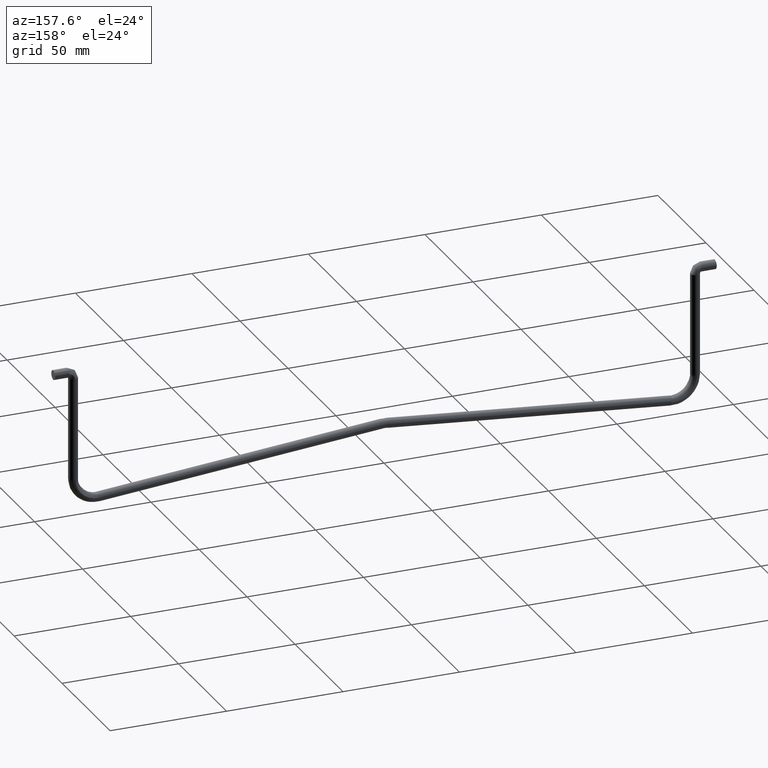
[diagram: clean part render]
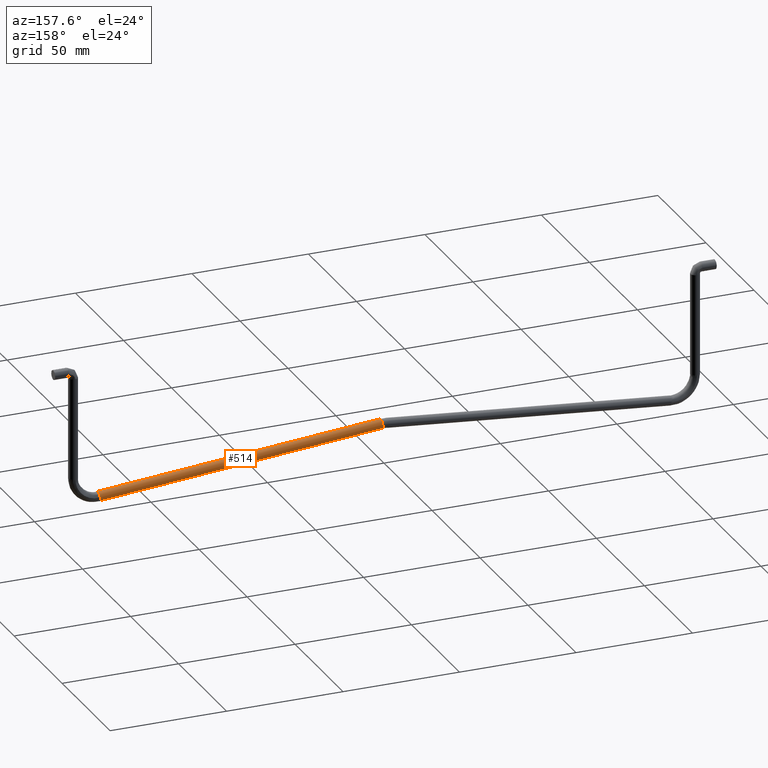
[diagram: same view with one face highlighted and labeled with its STEP entity id]
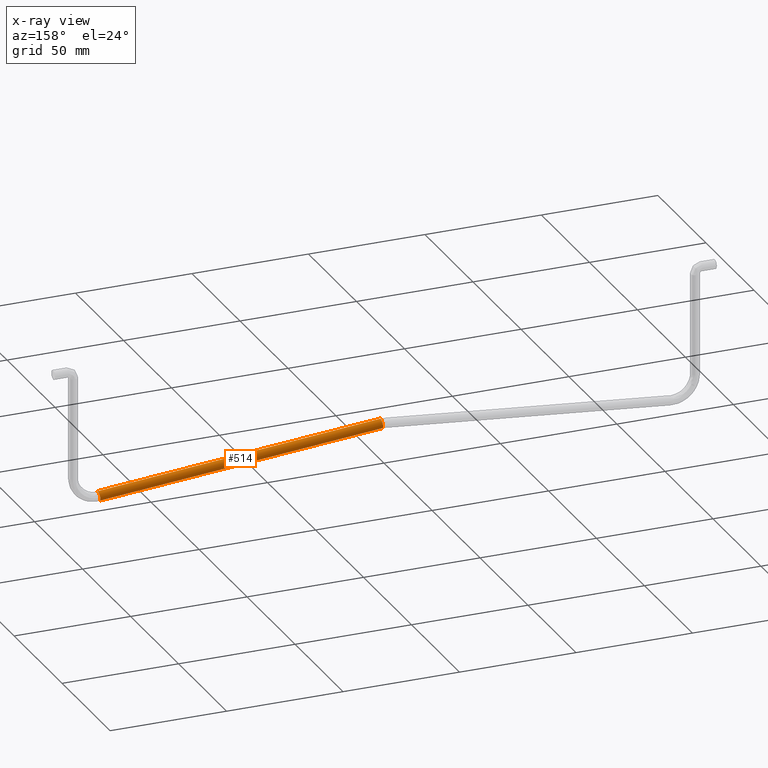
[diagram: x-ray of the same camera — body ghosted, the highlighted face saturated]
A machine part, auxiliary view. The second image highlights one B-rep face of the part: STEP entity #514.
The next image is the same camera in x-ray: the body ghosted, the highlighted face saturated — about 0% of this face is hidden behind the body in this view.
In plain terms, the highlighted face is a freeform B-spline surface patch.
Its self-contained STEP definition (entity closure, byte-faithful):
#416=CARTESIAN_POINT('',(-1.894572689403619,1.537013836734712,-48.049924696861602));
#417=CARTESIAN_POINT('',(-1.756922378464563,2.816696791878695,-46.519087041781106));
#418=CARTESIAN_POINT('',(-1.642317843053744,1.279682955143985,-45.244546235784959));
#419=CARTESIAN_POINT('',(-1.527713307642926,-0.257330881590726,-43.970005429788813));
#420=CARTESIAN_POINT('',(-1.665363618581982,-1.537013836734710,-45.500843084869302));
#421=CARTESIAN_POINT('',(125.599435672602400,1.537013836734710,-59.513968474236613));
#422=CARTESIAN_POINT('',(125.737085983541450,2.816696791878694,-57.983130819156123));
#423=CARTESIAN_POINT('',(125.851690518952300,1.279682955143983,-56.708590013159977));
#424=CARTESIAN_POINT('',(125.966295054363090,-0.257330881590728,-55.434049207163831));
#425=CARTESIAN_POINT('',(125.828644743423990,-1.537013836734712,-56.964886862244320));
#433=(BOUNDED_SURFACE()B_SPLINE_SURFACE(2,1,((#416,#421),(#417,#422),(#418,#423),(#419,#424),(#420,#425)),.UNSPECIFIED.,.F.,.F.,.U.)B_SPLINE_SURFACE_WITH_KNOTS((3,2,3),(2,2),(0.0,3.313708498984763,6.627416997969526),(0.0,128.008384365793890),.UNSPECIFIED.)GEOMETRIC_REPRESENTATION_ITEM()RATIONAL_B_SPLINE_SURFACE(((1.0,1.0),(0.707106781186548,0.707106781186548),(1.0,1.0),(0.707106781186548,0.707106781186548),(1.0,1.0)))REPRESENTATION_ITEM('')SURFACE());
#434=CARTESIAN_POINT('',(1.254914958074818,1.999961088061031,-47.035749243832242));
#435=VERTEX_POINT('',#434);
#436=CARTESIAN_POINT('',(1.139193163025730,1.537014186612701,-48.322715325970442));
#437=VERTEX_POINT('',#436);
#438=CARTESIAN_POINT('',(1.254914958074818,1.999961088061031,-47.035749243832242));
#439=CARTESIAN_POINT('',(1.236616741040583,2.001340001246007,-47.239247510314257));
#440=CARTESIAN_POINT('',(1.194755788715739,1.931933621273033,-47.704791842609083));
#441=CARTESIAN_POINT('',(1.157259897902431,1.705383933993770,-48.121791420569352));
#442=CARTESIAN_POINT('',(1.139193163025730,1.537014186612701,-48.322715325970442));
#443=B_SPLINE_CURVE_WITH_KNOTS('',3,(#438,#439,#440,#441,#442),.UNSPECIFIED.,.F.,.U.,(4,1,4),(0.000000095888993,0.613012842844756,1.401171125820932),.UNSPECIFIED.);
#444=EDGE_CURVE('',#435,#437,#443,.T.);
#445=ORIENTED_EDGE('',*,*,#444,.F.);
#446=CARTESIAN_POINT('',(1.432911612347375,7.035478E-016,-45.056211537161822));
#447=VERTEX_POINT('',#446);
#448=CARTESIAN_POINT('',(1.432911612347375,7.035478E-016,-45.056211537161822));
#449=CARTESIAN_POINT('',(1.432956897910799,0.309784270798028,-45.055707907019602));
#450=CARTESIAN_POINT('',(1.423225340705415,0.765530240852663,-45.163934572916787));
#451=CARTESIAN_POINT('',(1.388905387519696,1.357472749247357,-45.545613889867852));
#452=CARTESIAN_POINT('',(1.337966062033731,1.839847611675766,-46.112120692840691));
#453=CARTESIAN_POINT('',(1.285576912808538,1.998555927506360,-46.694751286294313));
#454=CARTESIAN_POINT('',(1.254914958074818,1.999961088061031,-47.035749243832242));
#455=B_SPLINE_CURVE_WITH_KNOTS('',3,(#448,#449,#450,#451,#452,#453,#454),.UNSPECIFIED.,.F.,.U.,(4,1,1,1,4),(0.000000620798800,0.928983246471164,1.369068778288884,2.102411565293877,3.129194646283923),.UNSPECIFIED.);
#456=EDGE_CURVE('',#447,#435,#455,.T.);
#457=ORIENTED_EDGE('',*,*,#456,.F.);
#458=CARTESIAN_POINT('',(1.368402234731515,-1.537013478530440,-45.773633704019282));
#459=VERTEX_POINT('',#458);
#460=CARTESIAN_POINT('',(1.368402234731515,-1.537013478530440,-45.773633704019282));
#461=CARTESIAN_POINT('',(1.387278287557493,-1.361970590679352,-45.563709205992097));
#462=CARTESIAN_POINT('',(1.420458032265294,-0.894222140356736,-45.194710384166967));
#463=CARTESIAN_POINT('',(1.432966067167307,-0.310526897920336,-45.055605933922926));
#464=CARTESIAN_POINT('',(1.432911612347375,7.035478E-016,-45.056211537161822));
#465=B_SPLINE_CURVE_WITH_KNOTS('',3,(#460,#461,#462,#463,#464),.UNSPECIFIED.,.F.,.U.,(4,1,4),(0.000000243578829,0.821804472083341,1.753062928318379),.UNSPECIFIED.);
#466=EDGE_CURVE('',#459,#447,#465,.T.);
#467=ORIENTED_EDGE('',*,*,#466,.F.);
#468=CARTESIAN_POINT('',(122.719034757161100,-1.537014029378297,-56.685276268364582));
#469=VERTEX_POINT('',#468);
#470=CARTESIAN_POINT('',(1.368402234731515,-1.537013478530440,-45.773633704019282));
#471=CARTESIAN_POINT('',(122.719034757161100,-1.537014029378297,-56.685276268364582));
#472=QUASI_UNIFORM_CURVE('',1,(#470,#471),.UNSPECIFIED.,.F.,.U.);
#473=EDGE_CURVE('',#459,#469,#472,.T.);
#474=ORIENTED_EDGE('',*,*,#473,.T.);
#475=CARTESIAN_POINT('',(122.783544193817410,-2.512990E-015,-55.967853442529197));
#476=VERTEX_POINT('',#475);
#477=CARTESIAN_POINT('',(122.719034757161100,-1.537014029378297,-56.685276268364582));
#478=CARTESIAN_POINT('',(122.737906399323190,-1.361930691645431,-56.475400816673840));
#479=CARTESIAN_POINT('',(122.771098814814590,-0.894295388449514,-56.106261073478016));
#480=CARTESIAN_POINT('',(122.783593944026610,-0.310496767415112,-55.967300154704191));
#481=CARTESIAN_POINT('',(122.783544193817410,-2.512990E-015,-55.967853442529197));
#482=B_SPLINE_CURVE_WITH_KNOTS('',3,(#477,#478,#479,#480,#481),.UNSPECIFIED.,.F.,.U.,(4,1,4),(0.000000243579076,0.821804875756372,1.753063789312001),.UNSPECIFIED.);
#483=EDGE_CURVE('',#469,#476,#482,.T.);
#484=ORIENTED_EDGE('',*,*,#483,.T.);
#485=CARTESIAN_POINT('',(122.622406431845600,1.989902032635088,-57.759899968356549));
#486=VERTEX_POINT('',#485);
#487=CARTESIAN_POINT('',(122.783544193817410,-2.512990E-015,-55.967853442529197));
#488=CARTESIAN_POINT('',(122.783562626453600,0.245076273374879,-55.967648449352772));
#489=CARTESIAN_POINT('',(122.775884876987600,0.704368118023570,-56.053034296148702));
#490=CARTESIAN_POINT('',(122.743675459905600,1.320823152025358,-56.411241914737360));
#491=CARTESIAN_POINT('',(122.692365397926300,1.801176566082436,-56.981871773224221));
#492=CARTESIAN_POINT('',(122.646978351542900,1.962543591458941,-57.486630544802473));
#493=CARTESIAN_POINT('',(122.622406431845600,1.989902032635088,-57.759899968356549));
#494=B_SPLINE_CURVE_WITH_KNOTS('',3,(#487,#488,#489,#490,#491,#492,#493),.UNSPECIFIED.,.F.,.U.,(4,1,1,1,4),(0.000000324500344,0.735197880068390,1.378504233510067,2.113691777810747,2.940789138839796),.UNSPECIFIED.);
#495=EDGE_CURVE('',#476,#486,#494,.T.);
#496=ORIENTED_EDGE('',*,*,#495,.T.);
#497=CARTESIAN_POINT('',(122.489825696840800,1.537013738999619,-59.234357766847538));
#498=VERTEX_POINT('',#497);
#499=CARTESIAN_POINT('',(122.622406431845600,1.989902032635088,-57.759899968356549));
#500=CARTESIAN_POINT('',(122.600272373372410,2.015038437464904,-58.006057412951471));
#501=CARTESIAN_POINT('',(122.552173328087510,1.968458006855851,-58.540976850431008));
#502=CARTESIAN_POINT('',(122.509181030791400,1.717455889604227,-59.019103089702099));
#503=CARTESIAN_POINT('',(122.489825696840800,1.537013738999619,-59.234357766847538));
#504=B_SPLINE_CURVE_WITH_KNOTS('',3,(#499,#500,#501,#502,#503),.UNSPECIFIED.,.F.,.U.,(4,1,4),(0.000000149563856,0.745207699923948,1.589686898184737),.UNSPECIFIED.);
#505=EDGE_CURVE('',#486,#498,#504,.T.);
#506=ORIENTED_EDGE('',*,*,#505,.T.);
#507=CARTESIAN_POINT('',(1.139193163025730,1.537014186612701,-48.322715325970442));
#508=CARTESIAN_POINT('',(122.489825696840800,1.537013738999619,-59.234357766847538));
#509=QUASI_UNIFORM_CURVE('',1,(#507,#508),.UNSPECIFIED.,.F.,.U.);
#510=EDGE_CURVE('',#437,#498,#509,.T.);
#511=ORIENTED_EDGE('',*,*,#510,.F.);
#512=EDGE_LOOP('',(#445,#457,#467,#474,#484,#496,#506,#511));
#513=FACE_OUTER_BOUND('',#512,.T.);
#514=ADVANCED_FACE('',(#513),#433,.T.);